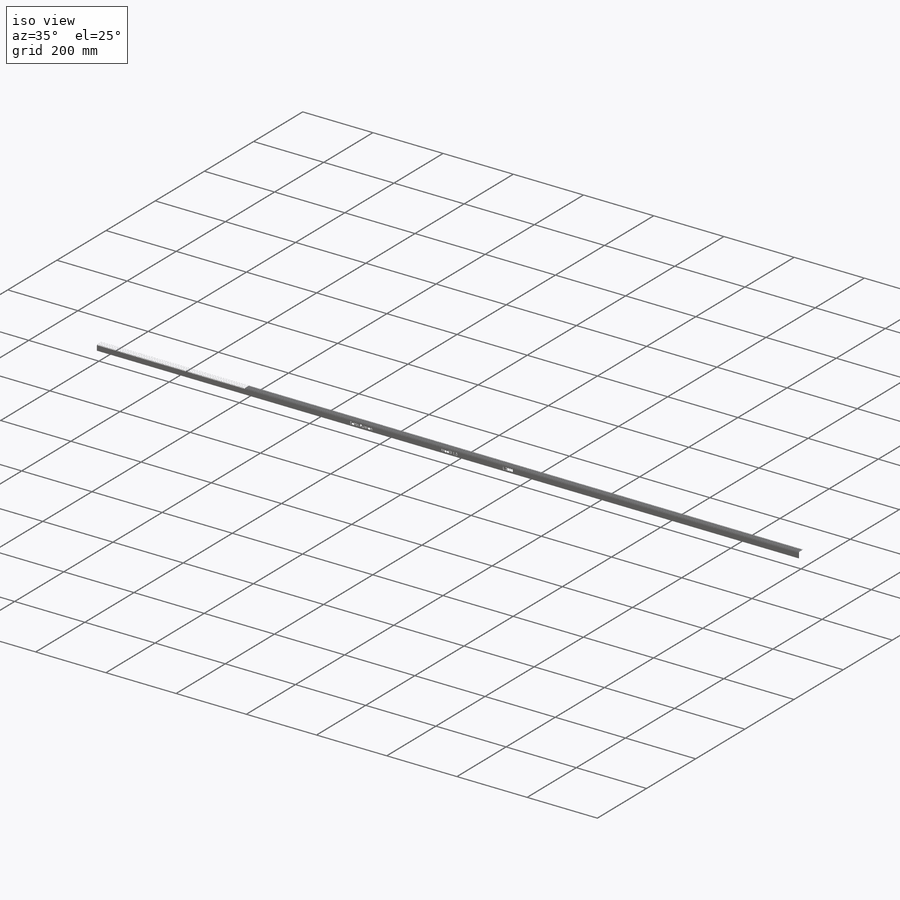
[diagram: iso view]
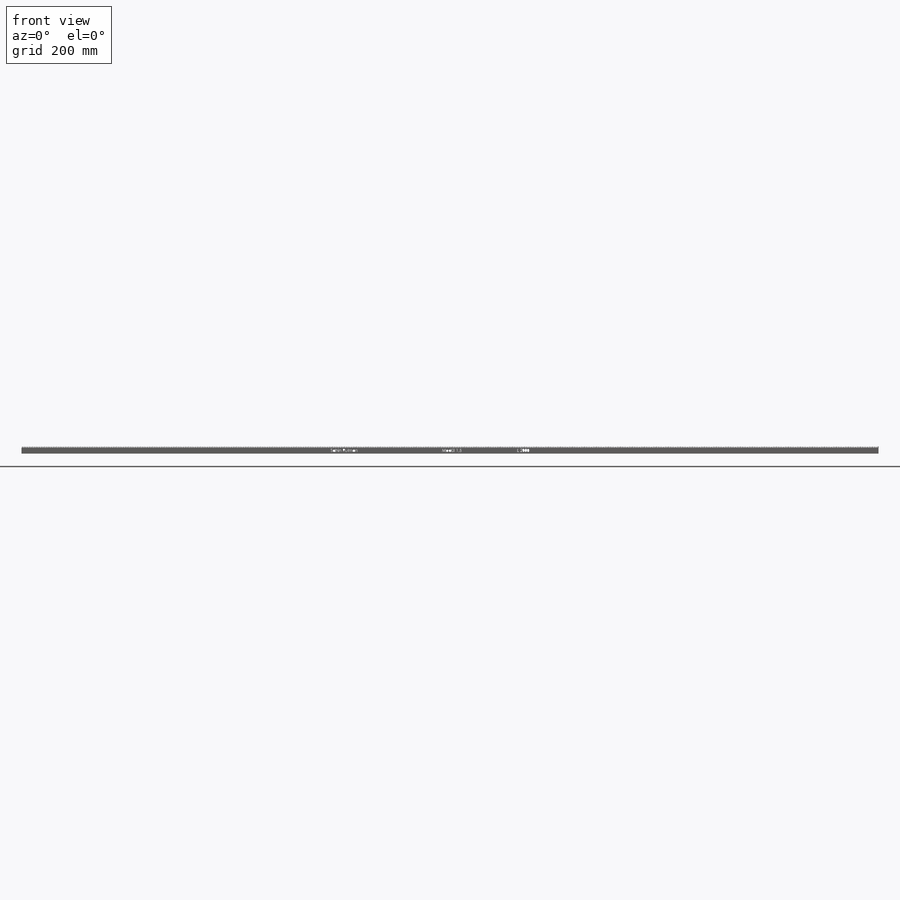
[diagram: front view]
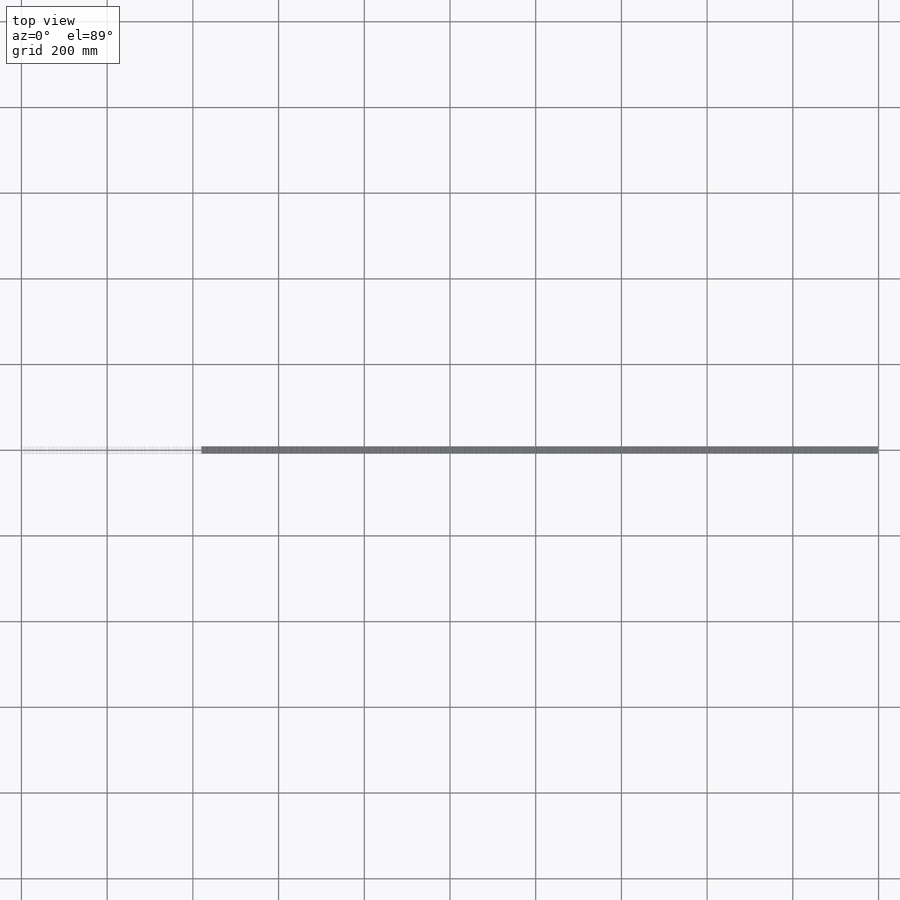
[diagram: top view]
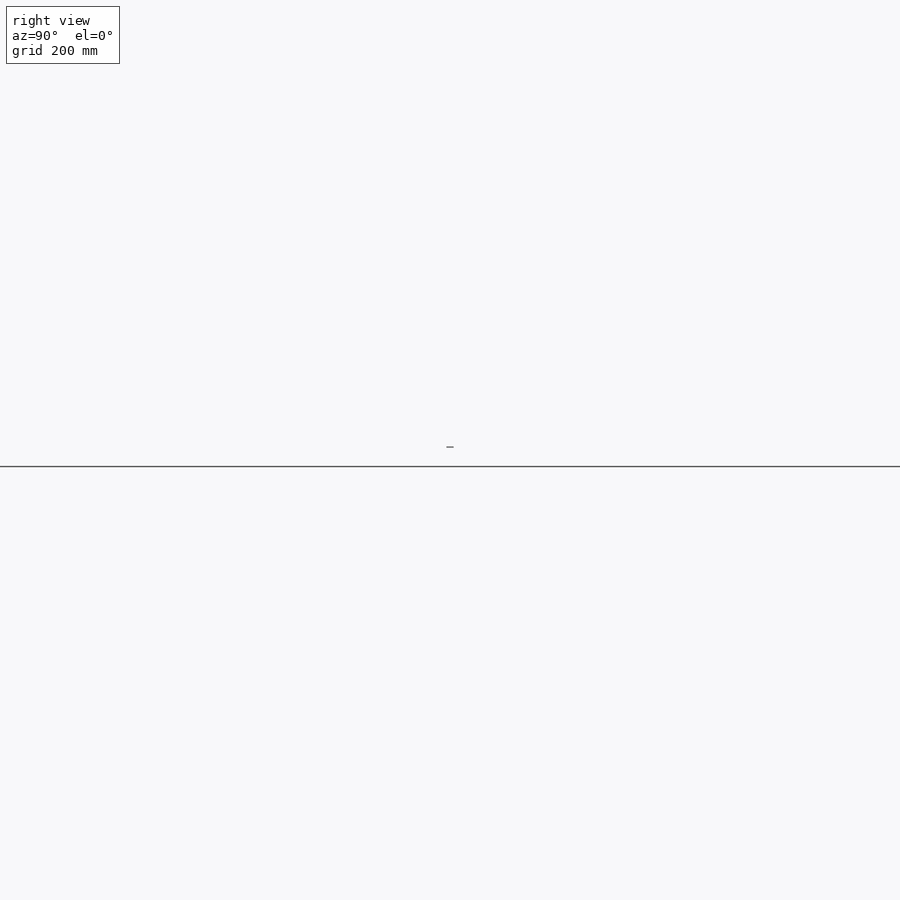
[diagram: right view]
SOLIDWORKS PART (.sldprt)
format: sldprt  version: not decoded by parser v0  size: 1,735,680 bytes
history: native  units: mm
features: sketch x3, cut_extrude x2, material x1, extrude x1, pattern_linear x1 (+11 scaffold rows collapsed)
feature tree (19):
  scaffold x11  (default folders/planes/origin — collapsed)
  material  "Material <not specified>"
  sketch  "Sketch1"  dims[D1=17.0mm D2=17.0mm]
  extrude  "Boss-Extrude1"  Depth=2000mm
  sketch  "Sketch2"  dims[c1.D1=3.375mm c1.D2=0.991mm c1.D3=0.991mm c2.D2=4.0mm c2.D3=~11.459022mm c3.D3=20.0deg c3.D4=~11.459022mm c4.D4=20.0deg c4.D5=0.4955mm c4.D6=~1.047701mm c4.D2=0.991mm c5.D6=2.0mm]
  cut_extrude  "Cut-Extrude1"  [1 undecoded]
  pattern_linear  "LPattern1"  Count1=2 Count2=1 Spacing1=4mm Spacing2=10mm
  sketch  "Sketch3"
  cut_extrude  "Cut-Extrude2"  Depth=2mm
decode coverage: 5 of 7 modeling features carry decoded parameters
note: ~ marks probable driven/reference dimensions
note: 1 parameter value undecoded
note: suppression state not decoded; provenance and decode notes live in map.json
